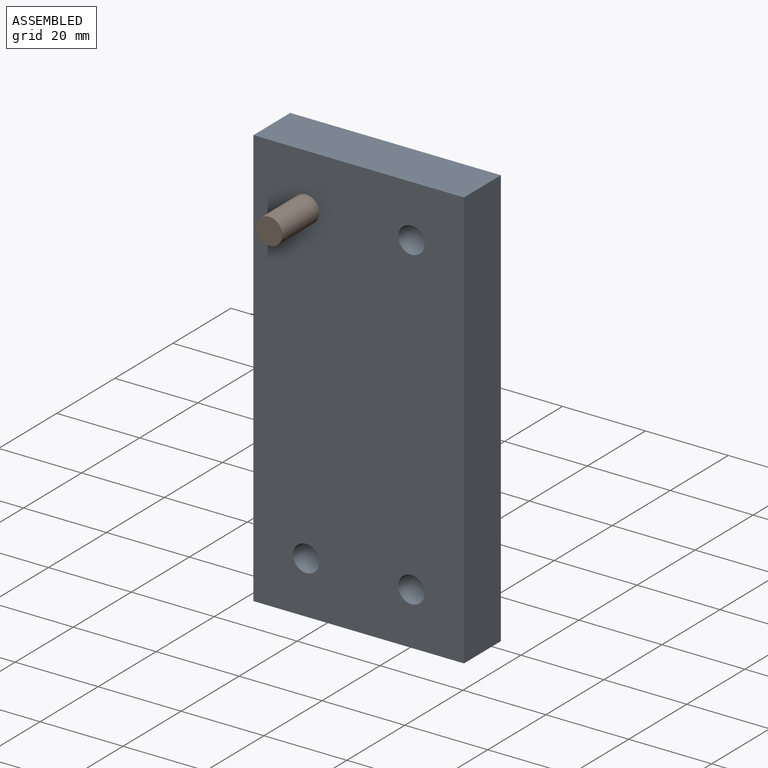
[diagram: assembled view]
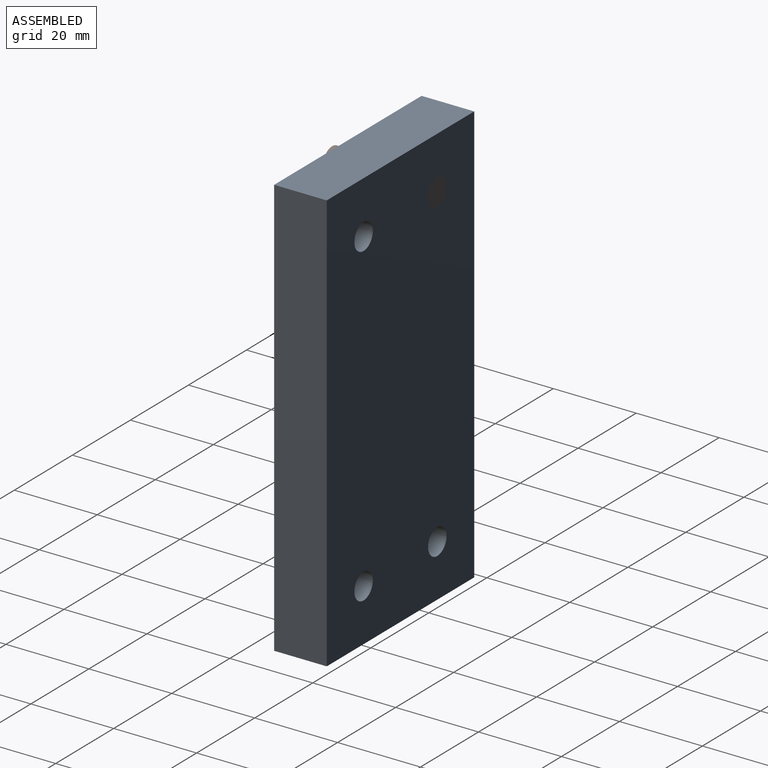
[diagram: assembled view, second angle]
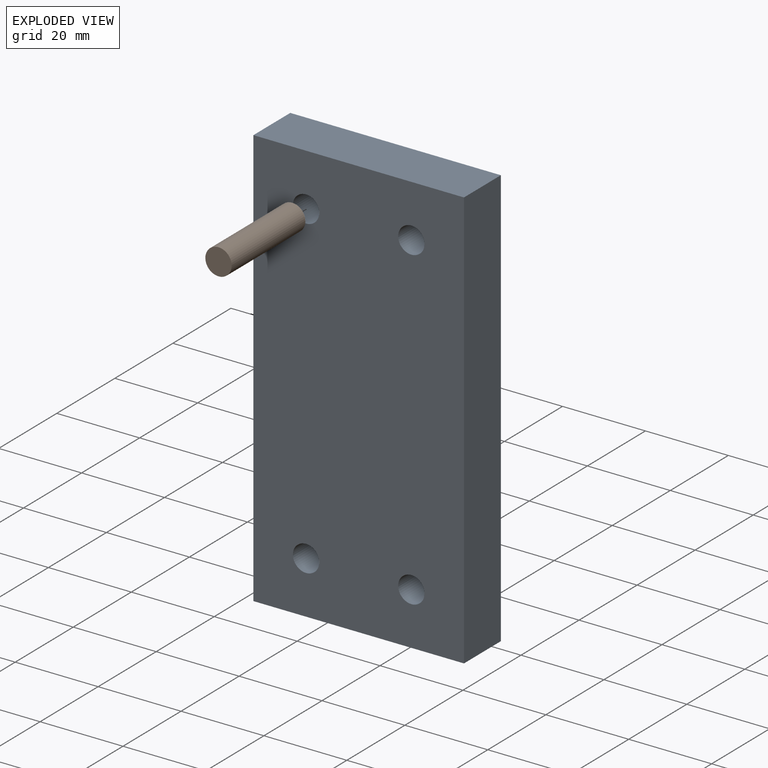
[diagram: exploded view]
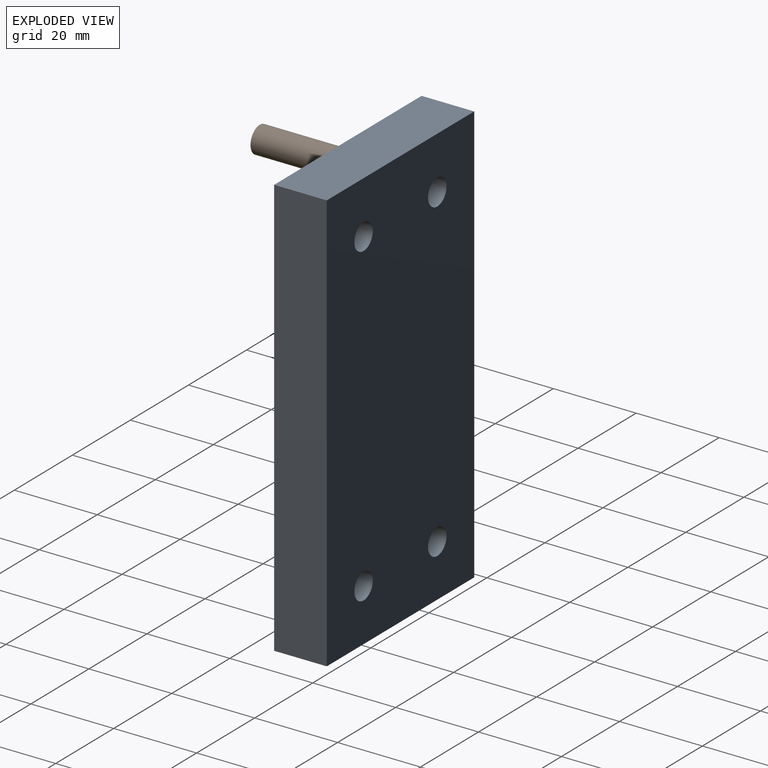
[diagram: exploded view, second angle]
ASSEMBLY  parts=2 mates=2
PART A: 10 faces, bbox 50.8x12.7x101.6 mm
  f0: plane 101.6x12.7mm, normal (1,0,0), area 1290.3mm2, adj f1,f3,f4,f5
  f1: plane 50.8x12.7mm, normal (0,0,1), area 645.2mm2, adj f0,f2,f4,f5
  f2: plane 101.6x12.7mm, normal (-1,0,0), area 1290.3mm2, adj f1,f3,f4,f5
  f3: plane 50.8x12.7mm, normal (0,0,-1), area 645.2mm2, adj f0,f2,f4,f5
  f4: plane 101.6x50.8mm, normal (0,-1,0), area 5034.6mm2, adj f0,f1,f2,f3,f6,f7,f8,f9
  f5: plane 101.6x50.8mm, normal (0,1,0), area 5034.6mm2, adj f0,f1,f2,f3,f6,f7,f8,f9
  f6: cylinder r=3.17mm len=12.7mm, axis (0,-1,0), area 253.4mm2, adj f4,f5
  f7: cylinder r=3.17mm len=12.7mm, axis (0,-1,0), area 253.4mm2, adj f4,f5
  f8: cylinder r=3.17mm len=12.7mm, axis (0,-1,0), area 253.4mm2, adj f4,f5
  f9: cylinder r=3.17mm len=12.7mm, axis (0,-1,0), area 253.4mm2, adj f4,f5
PART B: 3 faces, bbox 6.4x6.4x25.4 mm
  f0: cylinder r=3.17mm len=25.4mm, axis (0,0,-1), area 506.7mm2, adj f1,f2
  f1: plane 6.35x6.35mm, normal (0,0,1), area 31.7mm2, adj f0
  f2: plane 6.35x6.35mm, normal (0,0,-1), area 31.7mm2, adj f0
PLACE A t=(-10.25,0,1.46)mm fixed
PLACE B rot(axis=(-0.39,0.65,0.65),137.3deg) t=(-22.95,-12.7,39.56)mm
MATE planar B.f0 <-> A.f5  axis (0,-1,0) through (-22.95,0,39.56)mm
MATE cylindrical B.f0 <-> A.f6  axis (0,-1,0) through (-22.95,-12.7,39.56)mm
